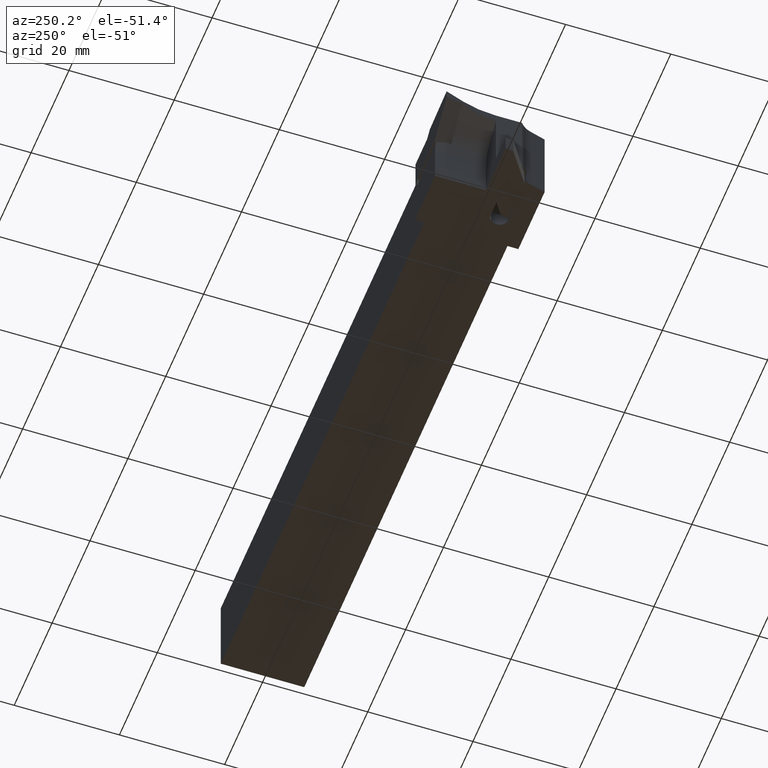
[diagram: clean part render]
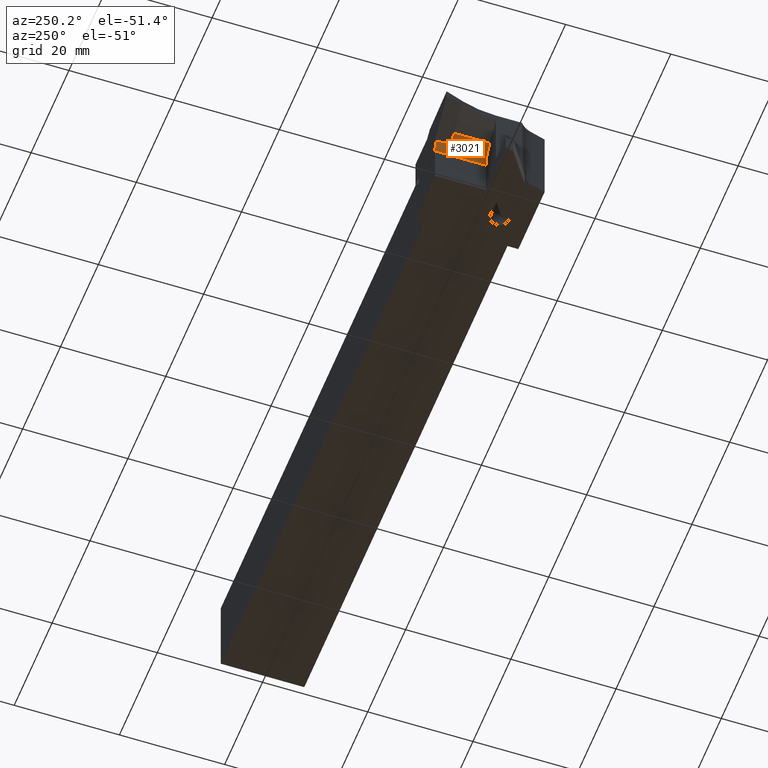
[diagram: same view with one face highlighted and labeled with its STEP entity id]
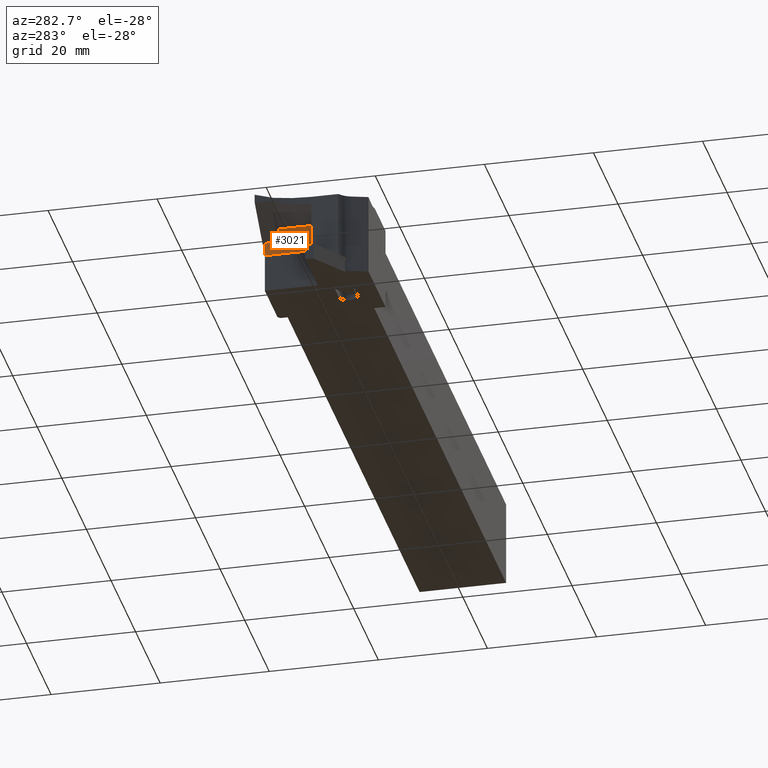
[diagram: same view with one face highlighted and labeled with its STEP entity id]
A machine part, auxiliary view. The second image highlights one B-rep face of the part: STEP entity #3021.
A second angle (auxiliary view) of the same face is appended — the face is thin or edge-on in the first view.
In plain terms, the highlighted cylindrical surface (edge-blend (fillet) strip) has radius 5.1 mm, axis along (0, 1, -0).
Its self-contained STEP definition (entity closure, byte-faithful):
#41 = VERTEX_POINT ( 'NONE', #1048 ) ;
#46 = CYLINDRICAL_SURFACE ( 'NONE', #142, 5.100000000000007600 ) ;
#105 = CARTESIAN_POINT ( 'NONE',  ( -118.5848210218611900, 8.487314993479019500, 1.537020017534972400 ) ) ;
#127 = AXIS2_PLACEMENT_3D ( 'NONE', #1584, #3245, #1851 ) ;
#139 = DIRECTION ( 'NONE',  ( 0.0000000000000000000, 0.0000000000000000000, 1.000000000000000000 ) ) ;
#142 = AXIS2_PLACEMENT_3D ( 'NONE', #210, #897, #2901 ) ;
#179 = AXIS2_PLACEMENT_3D ( 'NONE', #2751, #1267, #2972 ) ;
#210 = CARTESIAN_POINT ( 'NONE',  ( -123.1225815299994800, -164.3558317570675100, -0.7946447201392570200 ) ) ;
#211 = VECTOR ( 'NONE', #2879, 1000.000000000000000 ) ;
#323 = CARTESIAN_POINT ( 'NONE',  ( -119.8750205928481300, 6.820000000004150700, 3.137701648056560300 ) ) ;
#347 = AXIS2_PLACEMENT_3D ( 'NONE', #3279, #1912, #139 ) ;
#366 = CARTESIAN_POINT ( 'NONE',  ( -119.9827080058386500, -164.3558317570675100, 3.224210123255050900 ) ) ;
#422 = VERTEX_POINT ( 'NONE', #323 ) ;
#490 = EDGE_CURVE ( 'NONE', #41, #3333, #1883, .T. ) ;
#503 = LINE ( 'NONE', #366, #3299 ) ;
#538 = EDGE_CURVE ( 'NONE', #3114, #1217, #641, .T. ) ;
#552 = ORIENTED_EDGE ( 'NONE', *, *, #490, .F. ) ;
#641 =( BOUNDED_CURVE ( )  B_SPLINE_CURVE ( 3, ( #2014, #2064, #105, #2044 ),
 .UNSPECIFIED., .F., .F. ) 
 B_SPLINE_CURVE_WITH_KNOTS ( ( 4, 4 ),
 ( 2.045313328394342100, 2.124061344147464500 ),
 .UNSPECIFIED. ) 
 CURVE ( )  GEOMETRIC_REPRESENTATION_ITEM ( )  RATIONAL_B_SPLINE_CURVE ( ( 1.000000000000000000, 0.9994832959274854200, 0.9994832959274854200, 1.000000000000000000 ) ) 
 REPRESENTATION_ITEM ( '' )  );
#700 = ORIENTED_EDGE ( 'NONE', *, *, #2891, .T. ) ;
#846 = DIRECTION ( 'NONE',  ( -0.0000000000000000000, -1.000000000000000000, -0.0000000000000000000 ) ) ;
#897 = DIRECTION ( 'NONE',  ( 9.856383386231856400E-017, 1.000000000000000000, -0.0000000000000000000 ) ) ;
#899 = CIRCLE ( 'NONE', #347, 5.100000000000002300 ) ;
#960 = ORIENTED_EDGE ( 'NONE', *, *, #538, .F. ) ;
#985 = EDGE_LOOP ( 'NONE', ( #3379, #552, #700, #1363, #3360, #1830, #2862, #960 ) ) ;
#1048 = CARTESIAN_POINT ( 'NONE',  ( -118.0225815299994700, 0.0000000000000000000, -0.7946447201392579100 ) ) ;
#1180 = DIRECTION ( 'NONE',  ( 9.856383386231856400E-017, 1.000000000000000000, -0.0000000000000000000 ) ) ;
#1217 = VERTEX_POINT ( 'NONE', #1608 ) ;
#1222 = CARTESIAN_POINT ( 'NONE',  ( -118.4703246736555500, 9.700000000000001100, 1.294973939473296600 ) ) ;
#1267 = DIRECTION ( 'NONE',  ( 0.0000000000000000000, 1.000000000000000000, 0.0000000000000000000 ) ) ;
#1274 = CIRCLE ( 'NONE', #179, 5.100000000000002300 ) ;
#1284 = AXIS2_PLACEMENT_3D ( 'NONE', #2424, #846, #2655 ) ;
#1361 = CARTESIAN_POINT ( 'NONE',  ( -119.9827080058386300, 0.0000000000000000000, 3.224210123255046400 ) ) ;
#1363 = ORIENTED_EDGE ( 'NONE', *, *, #1520, .T. ) ;
#1488 = CARTESIAN_POINT ( 'NONE',  ( -119.9827080058386300, 6.820000000004561100, 3.224210123255048600 ) ) ;
#1520 = EDGE_CURVE ( 'NONE', #2818, #3120, #503, .T. ) ;
#1521 = VECTOR ( 'NONE', #2143, 1000.000000000000000 ) ;
#1584 = CARTESIAN_POINT ( 'NONE',  ( -123.1225815299994700, 9.700000000000013500, -0.7946447201392570200 ) ) ;
#1608 = CARTESIAN_POINT ( 'NONE',  ( -118.6491254278422500, 7.901199999999997600, 1.654475632573611900 ) ) ;
#1830 = ORIENTED_EDGE ( 'NONE', *, *, #2580, .T. ) ;
#1851 = DIRECTION ( 'NONE',  ( 0.0000000000000000000, 0.0000000000000000000, 1.000000000000000000 ) ) ;
#1883 = LINE ( 'NONE', #2163, #1521 ) ;
#1912 = DIRECTION ( 'NONE',  ( 0.0000000000000000000, 1.000000000000000000, 0.0000000000000000000 ) ) ;
#1919 = CIRCLE ( 'NONE', #127, 5.100000000000002300 ) ;
#1971 = EDGE_CURVE ( 'NONE', #1217, #2312, #2446, .T. ) ;
#2014 = CARTESIAN_POINT ( 'NONE',  ( -118.4703246736555500, 9.700000000000001100, 1.294973939473296600 ) ) ;
#2044 = CARTESIAN_POINT ( 'NONE',  ( -118.6491254278422500, 7.901199999999997600, 1.654475632573611900 ) ) ;
#2064 = CARTESIAN_POINT ( 'NONE',  ( -118.5251899588525200, 9.087224969406715800, 1.417124169161736700 ) ) ;
#2125 = CARTESIAN_POINT ( 'NONE',  ( -118.0225815299994600, 9.700000000000013500, -0.7946447201392576900 ) ) ;
#2143 = DIRECTION ( 'NONE',  ( 9.856383386231856400E-017, 1.000000000000000000, -0.0000000000000000000 ) ) ;
#2163 = CARTESIAN_POINT ( 'NONE',  ( -118.0225815299994800, -164.3558317570675100, -0.7946447201392576900 ) ) ;
#2219 = EDGE_CURVE ( 'NONE', #3120, #422, #899, .T. ) ;
#2312 = VERTEX_POINT ( 'NONE', #2657 ) ;
#2424 = CARTESIAN_POINT ( 'NONE',  ( -123.1225815299994700, 0.0000000000000000000, -0.7946447201392570200 ) ) ;
#2446 = LINE ( 'NONE', #2797, #211 ) ;
#2472 = FACE_OUTER_BOUND ( 'NONE', #985, .T. ) ;
#2580 = EDGE_CURVE ( 'NONE', #422, #2312, #1274, .T. ) ;
#2655 = DIRECTION ( 'NONE',  ( 5.442269728554686200E-015, 0.0000000000000000000, 1.000000000000000000 ) ) ;
#2657 = CARTESIAN_POINT ( 'NONE',  ( -118.6491254278422500, 6.819999999999993200, 1.654475632573610700 ) ) ;
#2707 = EDGE_CURVE ( 'NONE', #3333, #3114, #1919, .T. ) ;
#2751 = CARTESIAN_POINT ( 'NONE',  ( -123.1225815299994700, 6.819999999999993200, -0.7946447201392570200 ) ) ;
#2797 = CARTESIAN_POINT ( 'NONE',  ( -118.6491254278422600, -164.3558317570675100, 1.654475632573611900 ) ) ;
#2818 = VERTEX_POINT ( 'NONE', #1361 ) ;
#2862 = ORIENTED_EDGE ( 'NONE', *, *, #1971, .F. ) ;
#2879 = DIRECTION ( 'NONE',  ( -9.856383386231856400E-017, -1.000000000000000000, 0.0000000000000000000 ) ) ;
#2891 = EDGE_CURVE ( 'NONE', #41, #2818, #3138, .T. ) ;
#2901 = DIRECTION ( 'NONE',  ( -1.000000000000000000, 0.0000000000000000000, 0.0000000000000000000 ) ) ;
#2972 = DIRECTION ( 'NONE',  ( 0.0000000000000000000, 0.0000000000000000000, 1.000000000000000000 ) ) ;
#3021 = ADVANCED_FACE ( 'NONE', ( #2472 ), #46, .F. ) ;
#3114 = VERTEX_POINT ( 'NONE', #1222 ) ;
#3120 = VERTEX_POINT ( 'NONE', #1488 ) ;
#3138 = CIRCLE ( 'NONE', #1284, 5.100000000000002300 ) ;
#3245 = DIRECTION ( 'NONE',  ( -0.0000000000000000000, -1.000000000000000000, -0.0000000000000000000 ) ) ;
#3279 = CARTESIAN_POINT ( 'NONE',  ( -123.1225815299994700, 6.819999999999993200, -0.7946447201392570200 ) ) ;
#3299 = VECTOR ( 'NONE', #1180, 1000.000000000000000 ) ;
#3333 = VERTEX_POINT ( 'NONE', #2125 ) ;
#3360 = ORIENTED_EDGE ( 'NONE', *, *, #2219, .T. ) ;
#3379 = ORIENTED_EDGE ( 'NONE', *, *, #2707, .F. ) ;